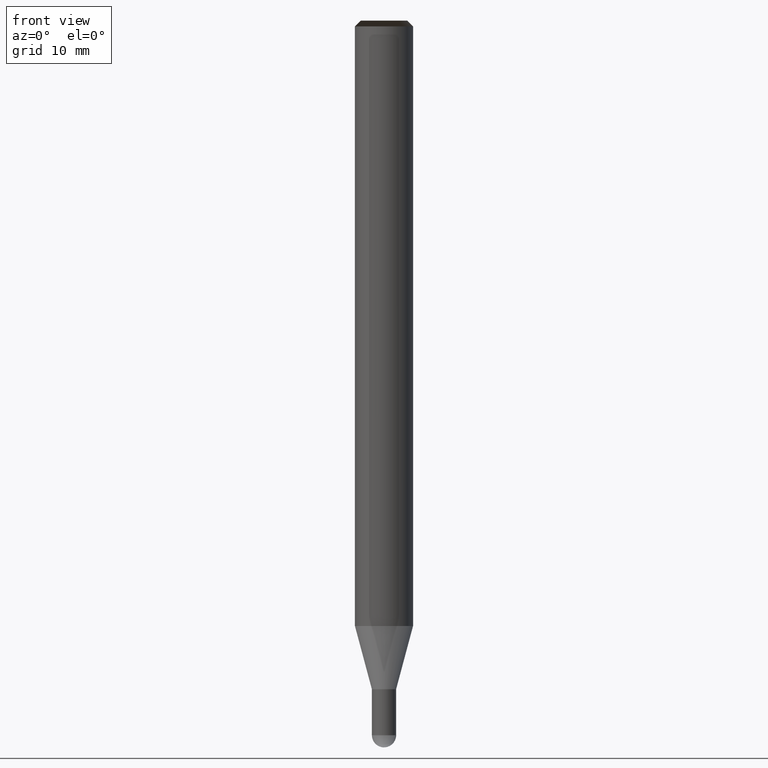
[diagram: clean part render]
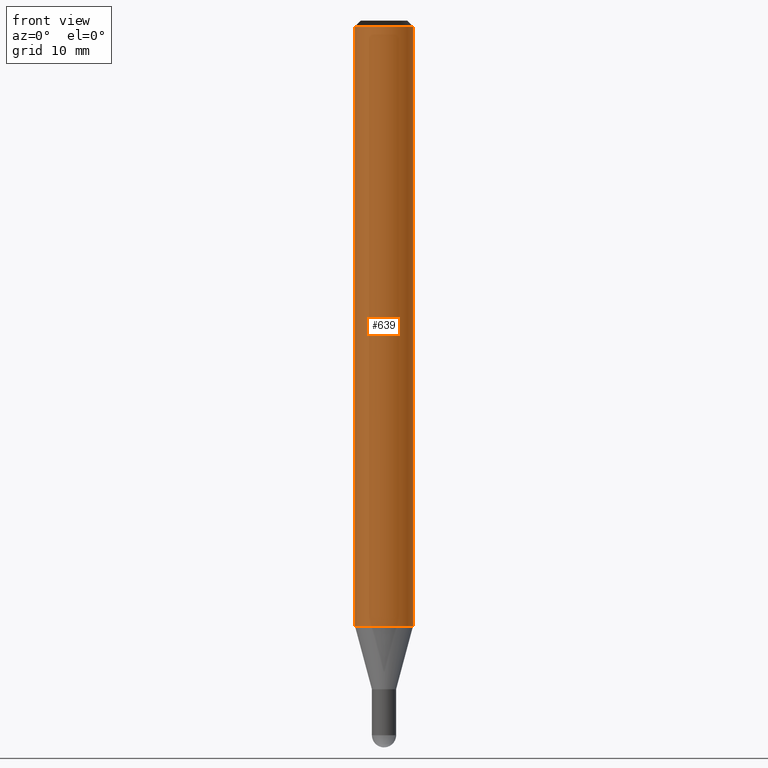
[diagram: same view with one face highlighted and labeled with its STEP entity id]
A machine part, front view. The second image highlights one B-rep face of the part: STEP entity #639.
In plain terms, the highlighted face is a freeform B-spline surface patch.
Its self-contained STEP definition (entity closure, byte-faithful):
#311=CARTESIAN_POINT('',(3.0,0.0,0.0));
#315=CARTESIAN_POINT('',(-3.0,0.0,0.0));
#316=CARTESIAN_POINT('',(3.0,0.0,61.868));
#320=CARTESIAN_POINT('',(-3.0,0.0,61.868));
#330=CARTESIAN_POINT('',(-3.0,-3.0,0.0));
#331=CARTESIAN_POINT('',(0.0,-3.0,0.0));
#332=CARTESIAN_POINT('',(3.0,-3.0,0.0));
#333=CARTESIAN_POINT('',(-3.0,-3.0,61.868));
#334=CARTESIAN_POINT('',(0.0,-3.0,61.868));
#335=CARTESIAN_POINT('',(3.0,-3.0,61.868));
#620=(
BOUNDED_SURFACE()
B_SPLINE_SURFACE(1,2,(
(#315,#330,#331,#332,#311),
(#320,#333,#334,#335,#316)
), .UNSPECIFIED.,.F.,.F.,.F.)
B_SPLINE_SURFACE_WITH_KNOTS((2,2),(3,2,3),(
0.0,1.0),(
0.0,0.5,1.0), .UNSPECIFIED.)
GEOMETRIC_REPRESENTATION_ITEM()
RATIONAL_B_SPLINE_SURFACE(((1.0,0.707106781187,1.0,0.707106781187,1.0),
(1.0,0.707106781187,1.0,0.707106781187,1.0)
))
REPRESENTATION_ITEM('')
SURFACE()
);
#621=(
BOUNDED_CURVE()
B_SPLINE_CURVE(1,(#320,#315),.UNSPECIFIED.,.F.,.F.)
B_SPLINE_CURVE_WITH_KNOTS((2,2),
(0.0,1.0),.UNSPECIFIED.)
CURVE()
GEOMETRIC_REPRESENTATION_ITEM()
RATIONAL_B_SPLINE_CURVE((1.0,1.0))
REPRESENTATION_ITEM('')
);
#622=(
BOUNDED_CURVE()
B_SPLINE_CURVE(2,(#315,#330,#331,#332,#311),.UNSPECIFIED.,.F.,.F.)
B_SPLINE_CURVE_WITH_KNOTS((3,2,3),
(0.0,0.5,1.0),.UNSPECIFIED.)
CURVE()
GEOMETRIC_REPRESENTATION_ITEM()
RATIONAL_B_SPLINE_CURVE((1.0,0.707106781187,1.0,0.707106781187,1.0))
REPRESENTATION_ITEM('')
);
#623=(
BOUNDED_CURVE()
B_SPLINE_CURVE(1,(#311,#316),.UNSPECIFIED.,.F.,.F.)
B_SPLINE_CURVE_WITH_KNOTS((2,2),
(0.0,1.0),.UNSPECIFIED.)
CURVE()
GEOMETRIC_REPRESENTATION_ITEM()
RATIONAL_B_SPLINE_CURVE((1.0,1.0))
REPRESENTATION_ITEM('')
);
#624=(
BOUNDED_CURVE()
B_SPLINE_CURVE(2,(#316,#335,#334,#333,#320),.UNSPECIFIED.,.F.,.F.)
B_SPLINE_CURVE_WITH_KNOTS((3,2,3),
(0.0,0.5,1.0),.UNSPECIFIED.)
CURVE()
GEOMETRIC_REPRESENTATION_ITEM()
RATIONAL_B_SPLINE_CURVE((1.0,0.707106781187,1.0,0.707106781187,1.0))
REPRESENTATION_ITEM('')
);
#625=VERTEX_POINT('',#311);
#626=VERTEX_POINT('',#315);
#627=VERTEX_POINT('',#316);
#628=VERTEX_POINT('',#320);
#629=EDGE_CURVE('',#628,#626,#621,.T.);
#630=EDGE_CURVE('',#626,#625,#622,.T.);
#631=EDGE_CURVE('',#625,#627,#623,.T.);
#632=EDGE_CURVE('',#627,#628,#624,.T.);
#633=ORIENTED_EDGE('',*,*,#629,.T.);
#634=ORIENTED_EDGE('',*,*,#630,.T.);
#635=ORIENTED_EDGE('',*,*,#631,.T.);
#636=ORIENTED_EDGE('',*,*,#632,.T.);
#637=EDGE_LOOP('',(#633,#634,#635,#636));
#638=FACE_OUTER_BOUND('',#637,.T.);
#639=ADVANCED_FACE('',(#638),#620,.T.);